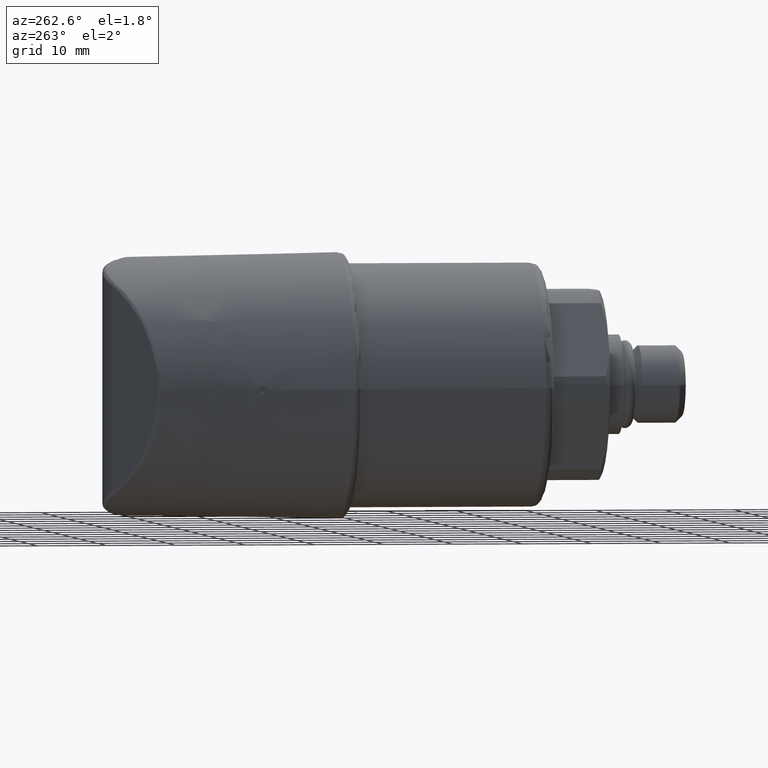
[diagram: clean part render]
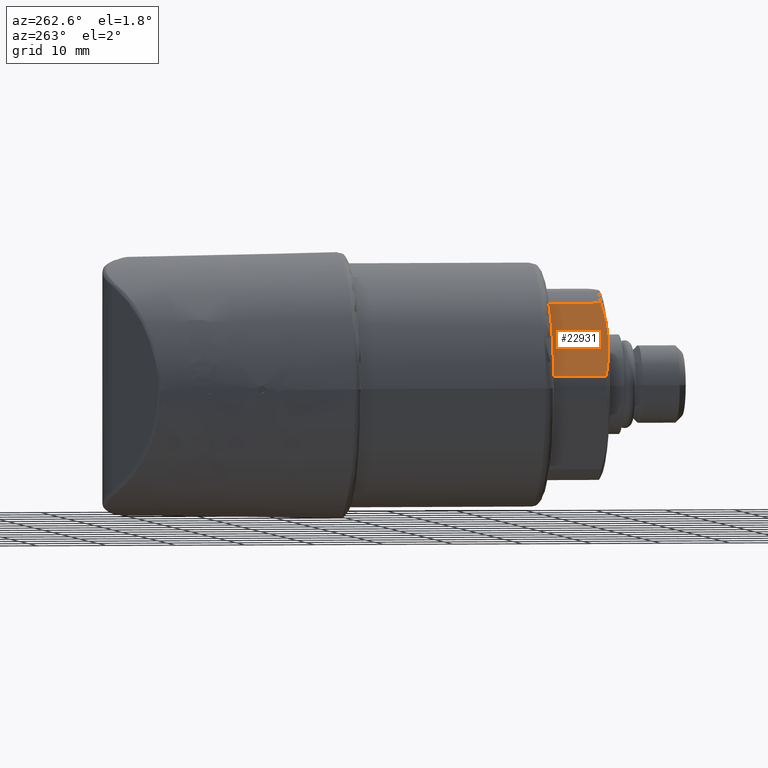
[diagram: same view with one face highlighted and labeled with its STEP entity id]
A machine part, auxiliary view. The second image highlights one B-rep face of the part: STEP entity #22931.
In plain terms, the highlighted planar face has unit normal (0.866, 0, -0.5).
Its self-contained STEP definition (entity closure, byte-faithful):
#3321=DIRECTION('',(-5.000000000002E-1,-1.363981844547E-13,-8.660254037843E-1));
#3322=VECTOR('',#3321,1.025586239744E-1);
#3323=CARTESIAN_POINT('',(-3.338558069106E-1,3.307086614173E-1,
4.847369060132E-1));
#3324=LINE('',#3323,#3322);
#3330=DIRECTION('',(-4.999999999996E-1,1.363981844545E-13,-8.660254037847E-1));
#3331=VECTOR('',#3330,1.025586239745E-1);
#3332=CARTESIAN_POINT('',(-5.354430662273E-1,3.307086614173E-1,
1.355775307181E-1));
#3333=LINE('',#3332,#3331);
#3807=DIRECTION('',(0.E0,-1.E0,-8.833238491432E-14));
#3808=VECTOR('',#3807,2.944217387210E-1);
#3809=CARTESIAN_POINT('',(-5.772661036256E-1,3.228346456693E-1,
6.313790501734E-2));
#3810=LINE('',#3809,#3808);
#3845=CARTESIAN_POINT('',(-5.772661036256E-1,2.841290694831E-2,
6.313790501731E-2));
#3846=CARTESIAN_POINT('',(-5.752434002067E-1,2.747194125642E-2,
6.664133010747E-2));
#3847=CARTESIAN_POINT('',(-5.712123692353E-1,2.563765925116E-2,
7.362328055693E-2));
#3848=CARTESIAN_POINT('',(-5.652152101297E-1,2.303177095514E-2,
8.401066482886E-2));
#3849=CARTESIAN_POINT('',(-5.592485544741E-1,2.056455740307E-2,
9.434521557563E-2));
#3850=CARTESIAN_POINT('',(-5.533790031056E-1,1.826056501703E-2,
1.045115767636E-1));
#3851=CARTESIAN_POINT('',(-5.473530659776E-1,1.602613654928E-2,
1.149488060325E-1));
#3852=CARTESIAN_POINT('',(-5.414186228893E-1,1.395903255459E-2,
1.252275629760E-1));
#3853=CARTESIAN_POINT('',(-5.355100213768E-1,1.203366901613E-2,
1.354615609974E-1));
#3854=CARTESIAN_POINT('',(-5.296711987428E-1,1.026339302770E-2,
1.455746984558E-1));
#3855=CARTESIAN_POINT('',(-5.237724212411E-1,8.611165290356E-3,
1.557916807913E-1));
#3856=CARTESIAN_POINT('',(-5.179405530686E-1,7.114999849072E-3,
1.658927727691E-1));
#3857=CARTESIAN_POINT('',(-5.121298746164E-1,5.761176411139E-3,
1.759571630748E-1));
#3858=CARTESIAN_POINT('',(-5.063512433660E-1,4.552193831440E-3,
1.859660459986E-1));
#3859=CARTESIAN_POINT('',(-5.005452163660E-1,3.477236818694E-3,
1.960223797528E-1));
#3860=CARTESIAN_POINT('',(-4.947673724931E-1,2.548332632650E-3,
2.060298988989E-1));
#3861=CARTESIAN_POINT('',(-4.890011104121E-1,1.762213415314E-3,
2.160173577930E-1));
#3862=CARTESIAN_POINT('',(-4.832511952816E-1,1.119684899522E-3,
2.259765029382E-1));
#3863=CARTESIAN_POINT('',(-4.775005767584E-1,6.191582424068E-4,
2.359368663952E-1));
#3864=CARTESIAN_POINT('',(-4.717630321701E-1,2.621276726246E-4,
2.458745851329E-1));
#3865=CARTESIAN_POINT('',(-4.660257001391E-1,4.766126848344E-5,
2.558119357105E-1));
#3866=CARTESIAN_POINT('',(-4.622012396946E-1,-3.886664644130E-13,
2.624360955119E-1));
#3867=CARTESIAN_POINT('',(-4.602890925436E-1,-9.152308891760E-14,
2.657480315289E-1));
#4327=CARTESIAN_POINT('',(-4.602890925436E-1,-9.152308891760E-14,
2.657480315289E-1));
#4328=CARTESIAN_POINT('',(-4.583639798972E-1,-6.995459366729E-14,
2.690824244429E-1));
#4329=CARTESIAN_POINT('',(-4.545138970176E-1,4.830548099708E-5,
2.757509636036E-1));
#4330=CARTESIAN_POINT('',(-4.487383640113E-1,2.656562247944E-4,
2.857544802114E-1));
#4331=CARTESIAN_POINT('',(-4.429649301002E-1,6.273093358285E-4,
2.957543610795E-1));
#4332=CARTESIAN_POINT('',(-4.371815121437E-1,1.133945979926E-3,
3.057715348215E-1));
#4333=CARTESIAN_POINT('',(-4.314043041218E-1,1.783505426790E-3,
3.157779526414E-1));
#4334=CARTESIAN_POINT('',(-4.256149737803E-1,2.577347214686E-3,
3.258053669348E-1));
#4335=CARTESIAN_POINT('',(-4.198189745807E-1,3.514215605094E-3,
3.358443320290E-1));
#4336=CARTESIAN_POINT('',(-4.139984796860E-1,4.597277609646E-3,
3.459257249118E-1));
#4337=CARTESIAN_POINT('',(-4.082120805214E-1,5.813483545473E-3,
3.559480622578E-1));
#4338=CARTESIAN_POINT('',(-4.023984343878E-1,7.173706239326E-3,
3.660175927384E-1));
#4339=CARTESIAN_POINT('',(-3.965760746221E-1,8.673028277993E-3,
3.761022156726E-1));
#4340=CARTESIAN_POINT('',(-3.907008780422E-1,1.032388283810E-2,
3.862783546534E-1));
#4341=CARTESIAN_POINT('',(-3.849092577982E-1,1.208411193747E-2,
3.963097351742E-1));
#4342=CARTESIAN_POINT('',(-3.790556267581E-1,1.399450009872E-2,
4.064485215444E-1));
#4343=CARTESIAN_POINT('',(-3.731775277869E-1,1.604374675774E-2,
4.166296876144E-1));
#4344=CARTESIAN_POINT('',(-3.672150393675E-1,1.825479714580E-2,
4.269570204963E-1));
#4345=CARTESIAN_POINT('',(-3.613405101232E-1,2.055982226656E-2,
4.371320036180E-1));
#4346=CARTESIAN_POINT('',(-3.553302136964E-1,2.304575379512E-2,
4.475421423977E-1));
#4347=CARTESIAN_POINT('',(-3.493893993822E-1,2.562742372811E-2,
4.578319346284E-1));
#4348=CARTESIAN_POINT('',(-3.453446078177E-1,2.746737162399E-2,
4.648377191241E-1));
#4349=CARTESIAN_POINT('',(-3.433120814996E-1,2.841290694831E-2,
4.683581579748E-1));
#4380=CARTESIAN_POINT('',(-5.772661036256E-1,3.228346456693E-1,
6.313790501734E-2));
#4381=CARTESIAN_POINT('',(-5.772661036256E-1,3.228810366252E-1,
6.313790501734E-2));
#4382=CARTESIAN_POINT('',(-5.772671218185E-1,3.229739097083E-1,
6.313614145568E-2));
#4383=CARTESIAN_POINT('',(-5.772717146521E-1,3.231133728749E-1,
6.312818643448E-2));
#4384=CARTESIAN_POINT('',(-5.772794097325E-1,3.232533495057E-1,
6.311485816419E-2));
#4385=CARTESIAN_POINT('',(-5.772902664393E-1,3.233940388544E-1,
6.309605379639E-2));
#4386=CARTESIAN_POINT('',(-5.773043708089E-1,3.235357024463E-1,
6.307162431162E-2));
#4387=CARTESIAN_POINT('',(-5.773218305998E-1,3.236785579251E-1,
6.304138306680E-2));
#4388=CARTESIAN_POINT('',(-5.773427866002E-1,3.238228777728E-1,
6.300508620931E-2));
#4389=CARTESIAN_POINT('',(-5.773673966613E-1,3.239688622331E-1,
6.296246033321E-2));
#4390=CARTESIAN_POINT('',(-5.773958624065E-1,3.241167995473E-1,
6.291315621620E-2));
#4391=CARTESIAN_POINT('',(-5.774283937836E-1,3.242668646111E-1,
6.285681021815E-2));
#4392=CARTESIAN_POINT('',(-5.774652727170E-1,3.244194061151E-1,
6.279293403180E-2));
#4393=CARTESIAN_POINT('',(-5.775067550640E-1,3.245745184718E-1,
6.272108449913E-2));
#4394=CARTESIAN_POINT('',(-5.775532046600E-1,3.247325715213E-1,
6.264063143896E-2));
#4395=CARTESIAN_POINT('',(-5.776049504932E-1,3.248936644219E-1,
6.255100502672E-2));
#4396=CARTESIAN_POINT('',(-5.776624367610E-1,3.250581318542E-1,
6.245143589022E-2));
#4397=CARTESIAN_POINT('',(-5.777260767954E-1,3.252260721661E-1,
6.234120811719E-2));
#4398=CARTESIAN_POINT('',(-5.777963866794E-1,3.253977361629E-1,
6.221942782593E-2));
#4399=CARTESIAN_POINT('',(-5.778738769496E-1,3.255732226420E-1,
6.208521074072E-2));
#4400=CARTESIAN_POINT('',(-5.779591830452E-1,3.257527834922E-1,
6.193745624901E-2));
#4401=CARTESIAN_POINT('',(-5.780529711697E-1,3.259365692470E-1,
6.177501045221E-2));
#4402=CARTESIAN_POINT('',(-5.781558846354E-1,3.261245591213E-1,
6.159675910090E-2));
#4403=CARTESIAN_POINT('',(-5.782686797177E-1,3.263168143612E-1,
6.140139228745E-2));
#4404=CARTESIAN_POINT('',(-5.783920798061E-1,3.265132144985E-1,
6.118765706476E-2));
#4405=CARTESIAN_POINT('',(-5.785270352948E-1,3.267138663917E-1,
6.095390730149E-2));
#4406=CARTESIAN_POINT('',(-5.786744879775E-1,3.269186834796E-1,
6.069851176332E-2));
#4407=CARTESIAN_POINT('',(-5.788353104437E-1,3.271273508654E-1,
6.041995908080E-2));
#4408=CARTESIAN_POINT('',(-5.790104401512E-1,3.273395226501E-1,
6.011662552965E-2));
#4409=CARTESIAN_POINT('',(-5.792007850503E-1,3.275547024585E-1,
5.978693849332E-2));
#4410=CARTESIAN_POINT('',(-5.794073404054E-1,3.277723825348E-1,
5.942917412378E-2));
#4411=CARTESIAN_POINT('',(-5.796311059835E-1,3.279919351828E-1,
5.904160077352E-2));
#4412=CARTESIAN_POINT('',(-5.798730575447E-1,3.282125920990E-1,
5.862252837652E-2));
#4413=CARTESIAN_POINT('',(-5.801340269167E-1,3.284333523399E-1,
5.817051616508E-2));
#4414=CARTESIAN_POINT('',(-5.804145503095E-1,3.286529169418E-1,
5.768463539603E-2));
#4415=CARTESIAN_POINT('',(-5.807151074334E-1,3.288699357766E-1,
5.716405518677E-2));
#4416=CARTESIAN_POINT('',(-5.810361682424E-1,3.290830315291E-1,
5.660796155326E-2));
#4417=CARTESIAN_POINT('',(-5.813781010080E-1,3.292907268349E-1,
5.601571663046E-2));
#4418=CARTESIAN_POINT('',(-5.817407719242E-1,3.294912395581E-1,
5.538755217725E-2));
#4419=CARTESIAN_POINT('',(-5.821234043141E-1,3.296825408756E-1,
5.472481343736E-2));
#4420=CARTESIAN_POINT('',(-5.825252355641E-1,3.298627666791E-1,
5.402882129614E-2));
#4421=CARTESIAN_POINT('',(-5.829453330735E-1,3.300300940132E-1,
5.330119106589E-2));
#4422=CARTESIAN_POINT('',(-5.833821835369E-1,3.301826312868E-1,
5.254454386786E-2));
#4423=CARTESIAN_POINT('',(-5.838340838840E-1,3.303186302485E-1,
5.176182950673E-2));
#4424=CARTESIAN_POINT('',(-5.842986447080E-1,3.304363905095E-1,
5.095718655640E-2));
#4425=CARTESIAN_POINT('',(-5.847735562837E-1,3.305345381860E-1,
5.013461557823E-2));
#4426=CARTESIAN_POINT('',(-5.852562734587E-1,3.306119224857E-1,
4.929852490538E-2));
#4427=CARTESIAN_POINT('',(-5.857439613124E-1,3.306676727130E-1,
4.845382476461E-2));
#4428=CARTESIAN_POINT('',(-5.862340119791E-1,3.307012300191E-1,
4.760503211146E-2));
#4429=CARTESIAN_POINT('',(-5.865596230044E-1,3.307086614173E-1,
4.704105727220E-2));
#4430=CARTESIAN_POINT('',(-5.867223782146E-1,3.307086614173E-1,
4.675915697899E-2));
#4432=CARTESIAN_POINT('',(-3.851351188978E-1,3.307086614173E-1,
3.959185322742E-1));
#4433=CARTESIAN_POINT('',(-3.871559270047E-1,3.301614126824E-1,
3.924183899607E-1));
#4434=CARTESIAN_POINT('',(-3.911957281241E-1,3.291083967790E-1,
3.854212491694E-1));
#4435=CARTESIAN_POINT('',(-3.972376117898E-1,3.276573895921E-1,
3.749563996870E-1));
#4436=CARTESIAN_POINT('',(-4.032991767036E-1,3.263283110407E-1,
3.644574612829E-1));
#4437=CARTESIAN_POINT('',(-4.093266725484E-1,3.251342378803E-1,
3.540175322373E-1));
#4438=CARTESIAN_POINT('',(-4.153634012421E-1,3.240674936385E-1,
3.435616114283E-1));
#4439=CARTESIAN_POINT('',(-4.213700118550E-1,3.231359710386E-1,
3.331578566656E-1));
#4440=CARTESIAN_POINT('',(-4.273909743129E-1,3.223335071794E-1,
3.227292437779E-1));
#4441=CARTESIAN_POINT('',(-4.333917855321E-1,3.216658483830E-1,
3.123355338596E-1));
#4442=CARTESIAN_POINT('',(-4.393956827909E-1,3.211306521243E-1,
3.019364787640E-1));
#4443=CARTESIAN_POINT('',(-4.453872718167E-1,3.207300255712E-1,
2.915587421532E-1));
#4444=CARTESIAN_POINT('',(-4.513727671322E-1,3.204633878022E-1,
2.811915601584E-1));
#4445=CARTESIAN_POINT('',(-4.573591434418E-1,3.203306877054E-1,
2.708228522368E-1));
#4446=CARTESIAN_POINT('',(-4.633423328311E-1,3.203320770802E-1,
2.604596642233E-1));
#4447=CARTESIAN_POINT('',(-4.693267662919E-1,3.204674851811E-1,
2.500943214146E-1));
#4448=CARTESIAN_POINT('',(-4.753089261516E-1,3.207366596035E-1,
2.397329165987E-1));
#4449=CARTESIAN_POINT('',(-4.812951394284E-1,3.211395097185E-1,
2.293644910584E-1));
#4450=CARTESIAN_POINT('',(-4.872912789148E-1,3.216764405717E-1,
2.189788728187E-1));
#4451=CARTESIAN_POINT('',(-4.932821937862E-1,3.223452124190E-1,
2.086023038775E-1));
#4452=CARTESIAN_POINT('',(-4.992911904432E-1,3.231480467847E-1,
1.981944163650E-1));
#4453=CARTESIAN_POINT('',(-5.052840898411E-1,3.240791051098E-1,
1.878144101232E-1));
#4454=CARTESIAN_POINT('',(-5.113053944608E-1,3.251444716135E-1,
1.773852045942E-1));
#4455=CARTESIAN_POINT('',(-5.173142454886E-1,3.263358021969E-1,
1.669775693188E-1));
#4456=CARTESIAN_POINT('',(-5.233585219187E-1,3.276616307131E-1,
1.565085754470E-1));
#4457=CARTESIAN_POINT('',(-5.293863472497E-1,3.291094402358E-1,
1.460680757144E-1));
#4458=CARTESIAN_POINT('',(-5.334227735832E-1,3.301615522733E-1,
1.390767802239E-1));
#4459=CARTESIAN_POINT('',(-5.354430662273E-1,3.307086614173E-1,
1.355775307181E-1));
#4466=CARTESIAN_POINT('',(-3.433120814996E-1,3.228346456693E-1,
4.683581579748E-1));
#4467=CARTESIAN_POINT('',(-3.433120814996E-1,3.228810368844E-1,
4.683581579748E-1));
#4468=CARTESIAN_POINT('',(-3.433110632901E-1,3.229739104452E-1,
4.683599215653E-1));
#4469=CARTESIAN_POINT('',(-3.433064704518E-1,3.231133735244E-1,
4.683678765945E-1));
#4470=CARTESIAN_POINT('',(-3.432987752685E-1,3.232533513091E-1,
4.683812050431E-1));
#4471=CARTESIAN_POINT('',(-3.432879186656E-1,3.233940391364E-1,
4.684000092308E-1));
#4472=CARTESIAN_POINT('',(-3.432738140751E-1,3.235357045637E-1,
4.684244390983E-1));
#4473=CARTESIAN_POINT('',(-3.432563545760E-1,3.236785575967E-1,
4.684546798378E-1));
#4474=CARTESIAN_POINT('',(-3.432353980622E-1,3.238228807196E-1,
4.684909775844E-1));
#4475=CARTESIAN_POINT('',(-3.432107884887E-1,3.239688620878E-1,
4.685336026160E-1));
#4476=CARTESIAN_POINT('',(-3.431823220996E-1,3.241168026237E-1,
4.685829078483E-1));
#4477=CARTESIAN_POINT('',(-3.431497909227E-1,3.242668664738E-1,
4.686392534995E-1));
#4478=CARTESIAN_POINT('',(-3.431129110633E-1,3.244194114543E-1,
4.687031312897E-1));
#4479=CARTESIAN_POINT('',(-3.430714287800E-1,3.245745230465E-1,
4.687749807120E-1));
#4480=CARTESIAN_POINT('',(-3.430249780863E-1,3.247325793969E-1,
4.688554356736E-1));
#4481=CARTESIAN_POINT('',(-3.429732312552E-1,3.248936744102E-1,
4.689450638142E-1));
#4482=CARTESIAN_POINT('',(-3.429157453402E-1,3.250581403861E-1,
4.690446323397E-1));
#4483=CARTESIAN_POINT('',(-3.428521002994E-1,3.252260925501E-1,
4.691548687841E-1));
#4484=CARTESIAN_POINT('',(-3.427817934807E-1,3.253977477887E-1,
4.692766437661E-1));
#4485=CARTESIAN_POINT('',(-3.427042989238E-1,3.255732429941E-1,
4.694108682759E-1));
#4486=CARTESIAN_POINT('',(-3.426189911885E-1,3.257528057491E-1,
4.695586256078E-1));
#4487=CARTESIAN_POINT('',(-3.425251949570E-1,3.259366055677E-1,
4.697210854464E-1));
#4488=CARTESIAN_POINT('',(-3.424222755530E-1,3.261246029296E-1,
4.698993470832E-1));
#4489=CARTESIAN_POINT('',(-3.423094835566E-1,3.263168506472E-1,
4.700947085515E-1));
#4490=CARTESIAN_POINT('',(-3.421860613247E-1,3.265132827894E-1,
4.703084821281E-1));
#4491=CARTESIAN_POINT('',(-3.420510947956E-1,3.267139455505E-1,
4.705422510137E-1));
#4492=CARTESIAN_POINT('',(-3.419036363378E-1,3.269187650875E-1,
4.707976565547E-1));
#4493=CARTESIAN_POINT('',(-3.417428134377E-1,3.271274274837E-1,
4.710762099886E-1));
#4494=CARTESIAN_POINT('',(-3.415676794809E-1,3.273395996547E-1,
4.713795508999E-1));
#4495=CARTESIAN_POINT('',(-3.413773119723E-1,3.275547987718E-1,
4.717092770969E-1));
#4496=CARTESIAN_POINT('',(-3.411707643250E-1,3.277724637139E-1,
4.720670281163E-1));
#4497=CARTESIAN_POINT('',(-3.409470123941E-1,3.279919982285E-1,
4.724545778289E-1));
#4498=CARTESIAN_POINT('',(-3.407050505231E-1,3.282126599286E-1,
4.728736680830E-1));
#4499=CARTESIAN_POINT('',(-3.404440739416E-1,3.284334210541E-1,
4.733256927817E-1));
#4500=CARTESIAN_POINT('',(-3.401635412005E-1,3.286529871283E-1,
4.738115897425E-1));
#4501=CARTESIAN_POINT('',(-3.398630111135E-1,3.288699809900E-1,
4.743321231224E-1));
#4502=CARTESIAN_POINT('',(-3.395419861897E-1,3.290830507685E-1,
4.748881546009E-1));
#4503=CARTESIAN_POINT('',(-3.392000435370E-1,3.292907505970E-1,
4.754804166487E-1));
#4504=CARTESIAN_POINT('',(-3.388373674438E-1,3.294912636009E-1,
4.761085900687E-1));
#4505=CARTESIAN_POINT('',(-3.384547371446E-1,3.296825614504E-1,
4.767713251874E-1));
#4506=CARTESIAN_POINT('',(-3.380529177393E-1,3.298627798010E-1,
4.774672968129E-1));
#4507=CARTESIAN_POINT('',(-3.376328437837E-1,3.300300967349E-1,
4.781948862470E-1));
#4508=CARTESIAN_POINT('',(-3.371960097832E-1,3.301826284414E-1,
4.789515049303E-1));
#4509=CARTESIAN_POINT('',(-3.367441192854E-1,3.303186250926E-1,
4.797342022319E-1));
#4510=CARTESIAN_POINT('',(-3.362795692301E-1,3.304363837465E-1,
4.805388265304E-1));
#4511=CARTESIAN_POINT('',(-3.358046655287E-1,3.305345313283E-1,
4.813613838698E-1));
#4512=CARTESIAN_POINT('',(-3.353219551693E-1,3.306119165246E-1,
4.821974627377E-1));
#4513=CARTESIAN_POINT('',(-3.348342595981E-1,3.306676695995E-1,
4.830421762457E-1));
#4514=CARTESIAN_POINT('',(-3.343441976828E-1,3.307012291416E-1,
4.838909883818E-1));
#4515=CARTESIAN_POINT('',(-3.340185713032E-1,3.307086614173E-1,
4.844549898155E-1));
#4516=CARTESIAN_POINT('',(-3.338558069106E-1,3.307086614173E-1,
4.847369060132E-1));
#4522=DIRECTION('',(2.356787217564E-14,1.E0,1.734595392127E-14));
#4523=VECTOR('',#4522,2.944217387210E-1);
#4524=CARTESIAN_POINT('',(-3.433120814996E-1,2.841290694831E-2,
4.683581579748E-1));
#4525=LINE('',#4524,#4523);
#18793=CARTESIAN_POINT('',(-3.338558069105E-1,3.307086614173E-1,
4.847369060132E-1));
#18794=VERTEX_POINT('',#18793);
#18795=CARTESIAN_POINT('',(-3.851351188978E-1,3.307086614173E-1,
3.959185322742E-1));
#18796=VERTEX_POINT('',#18795);
#18797=CARTESIAN_POINT('',(-5.354430662274E-1,3.307086614173E-1,
1.355775307180E-1));
#18798=VERTEX_POINT('',#18797);
#18799=CARTESIAN_POINT('',(-5.867223782146E-1,3.307086614173E-1,
4.675915697899E-2));
#18800=VERTEX_POINT('',#18799);
#18840=CARTESIAN_POINT('',(-5.772661036256E-1,3.228346456693E-1,
6.313790501733E-2));
#18842=VERTEX_POINT('',#18840);
#18846=CARTESIAN_POINT('',(-5.772661036256E-1,2.841290694831E-2,
6.313790501733E-2));
#18847=VERTEX_POINT('',#18846);
#18849=CARTESIAN_POINT('',(-4.602890925442E-1,0.E0,2.657480315280E-1));
#18851=VERTEX_POINT('',#18849);
#18878=VERTEX_POINT('',#4349);
#18879=VERTEX_POINT('',#4466);
#22912=CARTESIAN_POINT('',(-3.068593950417E-1,0.E0,5.314960629921E-1));
#22913=DIRECTION('',(8.660254037844E-1,0.E0,-5.E-1));
#22914=DIRECTION('',(-5.E-1,0.E0,-8.660254037844E-1));
#22915=AXIS2_PLACEMENT_3D('',#22912,#22913,#22914);
#22916=PLANE('',#22915);
#22918=ORIENTED_EDGE('',*,*,#22917,.F.);
#22919=ORIENTED_EDGE('',*,*,#22508,.F.);
#22921=ORIENTED_EDGE('',*,*,#22920,.F.);
#22923=ORIENTED_EDGE('',*,*,#22922,.F.);
#22924=ORIENTED_EDGE('',*,*,#22903,.F.);
#22925=ORIENTED_EDGE('',*,*,#22713,.F.);
#22926=ORIENTED_EDGE('',*,*,#22696,.F.);
#22927=ORIENTED_EDGE('',*,*,#22679,.T.);
#22928=ORIENTED_EDGE('',*,*,#22512,.F.);
#22929=EDGE_LOOP('',(#22918,#22919,#22921,#22923,#22924,#22925,#22926,#22927,
#22928));
#22930=FACE_OUTER_BOUND('',#22929,.F.);
#3868=B_SPLINE_CURVE_WITH_KNOTS('',3,(#3845,#3846,#3847,#3848,#3849,#3850,#3851,
#3852,#3853,#3854,#3855,#3856,#3857,#3858,#3859,#3860,#3861,#3862,#3863,#3864,
#3865,#3866,#3867),.UNSPECIFIED.,.F.,.F.,(4,1,1,1,1,1,1,1,1,1,1,1,1,1,1,1,1,1,1,
1,4),(0.E0,5.E-2,1.E-1,1.5E-1,2.E-1,2.5E-1,3.E-1,3.5E-1,4.E-1,4.5E-1,5.E-1,
5.5E-1,6.E-1,6.5E-1,7.E-1,7.5E-1,8.E-1,8.5E-1,9.E-1,9.5E-1,1.E0),.UNSPECIFIED.);
#4350=B_SPLINE_CURVE_WITH_KNOTS('',3,(#4327,#4328,#4329,#4330,#4331,#4332,#4333,
#4334,#4335,#4336,#4337,#4338,#4339,#4340,#4341,#4342,#4343,#4344,#4345,#4346,
#4347,#4348,#4349),.UNSPECIFIED.,.F.,.F.,(4,1,1,1,1,1,1,1,1,1,1,1,1,1,1,1,1,1,1,
1,4),(0.E0,5.E-2,1.E-1,1.5E-1,2.E-1,2.5E-1,3.E-1,3.5E-1,4.E-1,4.5E-1,5.E-1,
5.5E-1,6.E-1,6.5E-1,7.E-1,7.5E-1,8.E-1,8.5E-1,9.E-1,9.5E-1,1.E0),.UNSPECIFIED.);
#4431=B_SPLINE_CURVE_WITH_KNOTS('',3,(#4380,#4381,#4382,#4383,#4384,#4385,#4386,
#4387,#4388,#4389,#4390,#4391,#4392,#4393,#4394,#4395,#4396,#4397,#4398,#4399,
#4400,#4401,#4402,#4403,#4404,#4405,#4406,#4407,#4408,#4409,#4410,#4411,#4412,
#4413,#4414,#4415,#4416,#4417,#4418,#4419,#4420,#4421,#4422,#4423,#4424,#4425,
#4426,#4427,#4428,#4429,#4430),.UNSPECIFIED.,.F.,.F.,(4,1,1,1,1,1,1,1,1,1,1,1,1,
1,1,1,1,1,1,1,1,1,1,1,1,1,1,1,1,1,1,1,1,1,1,1,1,1,1,1,1,1,1,1,1,1,1,1,4),(0.E0,
2.083333333333E-2,4.166666666667E-2,6.25E-2,8.333333333333E-2,1.041666666667E-1,
1.25E-1,1.458333333333E-1,1.666666666667E-1,1.875E-1,2.083333333333E-1,
2.291666666667E-1,2.5E-1,2.708333333333E-1,2.916666666667E-1,3.125E-1,
3.333333333333E-1,3.541666666667E-1,3.75E-1,3.958333333333E-1,4.166666666667E-1,
4.375E-1,4.583333333333E-1,4.791666666667E-1,5.E-1,5.208333333333E-1,
5.416666666667E-1,5.625E-1,5.833333333333E-1,6.041666666667E-1,6.25E-1,
6.458333333333E-1,6.666666666667E-1,6.875E-1,7.083333333333E-1,
7.291666666667E-1,7.5E-1,7.708333333333E-1,7.916666666667E-1,8.125E-1,
8.333333333333E-1,8.541666666667E-1,8.75E-1,8.958333333333E-1,9.166666666667E-1,
9.375E-1,9.583333333333E-1,9.791666666667E-1,1.E0),.UNSPECIFIED.);
#4460=B_SPLINE_CURVE_WITH_KNOTS('',3,(#4432,#4433,#4434,#4435,#4436,#4437,#4438,
#4439,#4440,#4441,#4442,#4443,#4444,#4445,#4446,#4447,#4448,#4449,#4450,#4451,
#4452,#4453,#4454,#4455,#4456,#4457,#4458,#4459),.UNSPECIFIED.,.F.,.F.,(4,1,1,1,
1,1,1,1,1,1,1,1,1,1,1,1,1,1,1,1,1,1,1,1,1,4),(0.E0,4.E-2,8.E-2,1.2E-1,1.6E-1,
2.E-1,2.4E-1,2.8E-1,3.2E-1,3.6E-1,4.E-1,4.4E-1,4.8E-1,5.2E-1,5.6E-1,6.E-1,
6.4E-1,6.8E-1,7.2E-1,7.6E-1,8.E-1,8.4E-1,8.8E-1,9.2E-1,9.6E-1,1.E0),
.UNSPECIFIED.);
#4517=B_SPLINE_CURVE_WITH_KNOTS('',3,(#4466,#4467,#4468,#4469,#4470,#4471,#4472,
#4473,#4474,#4475,#4476,#4477,#4478,#4479,#4480,#4481,#4482,#4483,#4484,#4485,
#4486,#4487,#4488,#4489,#4490,#4491,#4492,#4493,#4494,#4495,#4496,#4497,#4498,
#4499,#4500,#4501,#4502,#4503,#4504,#4505,#4506,#4507,#4508,#4509,#4510,#4511,
#4512,#4513,#4514,#4515,#4516),.UNSPECIFIED.,.F.,.F.,(4,1,1,1,1,1,1,1,1,1,1,1,1,
1,1,1,1,1,1,1,1,1,1,1,1,1,1,1,1,1,1,1,1,1,1,1,1,1,1,1,1,1,1,1,1,1,1,1,4),(0.E0,
2.083333333333E-2,4.166666666667E-2,6.25E-2,8.333333333333E-2,1.041666666667E-1,
1.25E-1,1.458333333333E-1,1.666666666667E-1,1.875E-1,2.083333333333E-1,
2.291666666667E-1,2.5E-1,2.708333333333E-1,2.916666666667E-1,3.125E-1,
3.333333333333E-1,3.541666666667E-1,3.75E-1,3.958333333333E-1,4.166666666667E-1,
4.375E-1,4.583333333333E-1,4.791666666667E-1,5.E-1,5.208333333333E-1,
5.416666666667E-1,5.625E-1,5.833333333333E-1,6.041666666667E-1,6.25E-1,
6.458333333333E-1,6.666666666667E-1,6.875E-1,7.083333333333E-1,
7.291666666667E-1,7.5E-1,7.708333333333E-1,7.916666666667E-1,8.125E-1,
8.333333333333E-1,8.541666666667E-1,8.75E-1,8.958333333333E-1,9.166666666667E-1,
9.375E-1,9.583333333333E-1,9.791666666667E-1,1.E0),.UNSPECIFIED.);
#22508=EDGE_CURVE('',#18794,#18796,#3324,.T.);
#22512=EDGE_CURVE('',#18798,#18800,#3333,.T.);
#22679=EDGE_CURVE('',#18842,#18800,#4431,.T.);
#22696=EDGE_CURVE('',#18842,#18847,#3810,.T.);
#22713=EDGE_CURVE('',#18847,#18851,#3868,.T.);
#22903=EDGE_CURVE('',#18851,#18878,#4350,.T.);
#22917=EDGE_CURVE('',#18796,#18798,#4460,.T.);
#22920=EDGE_CURVE('',#18879,#18794,#4517,.T.);
#22922=EDGE_CURVE('',#18878,#18879,#4525,.T.);
#22931=ADVANCED_FACE('',(#22930),#22916,.F.);